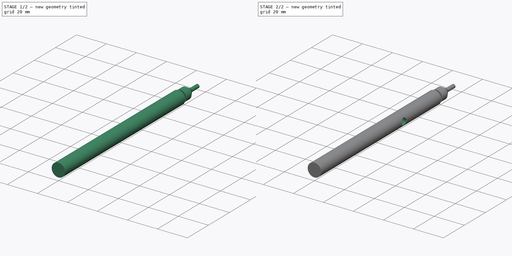
[diagram: build sequence overview — one tinted view per stage of 2, left to right]
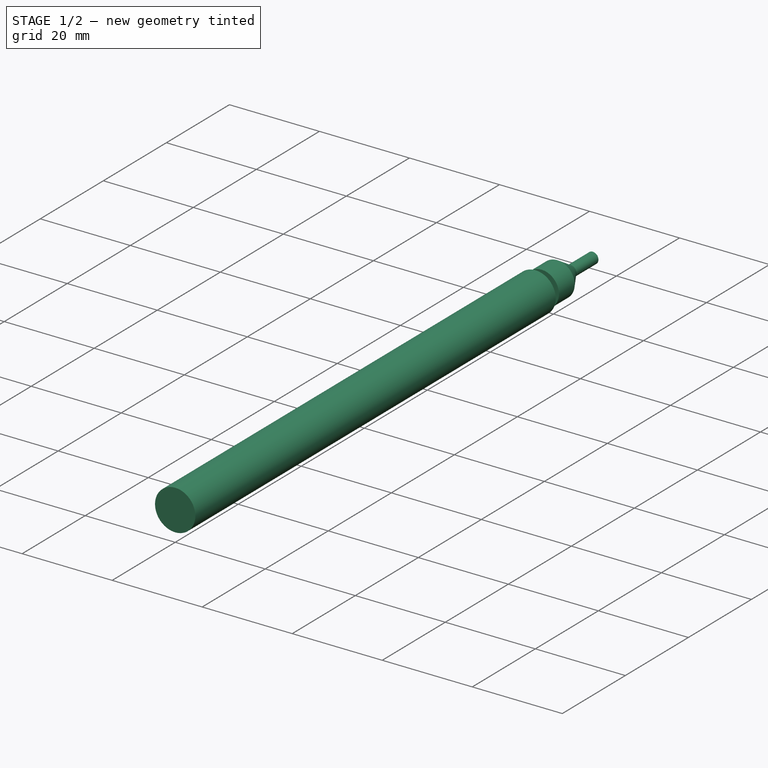
[diagram: stage 1 of 2 — iso view after this stage's code; geometry added in this stage tinted green]
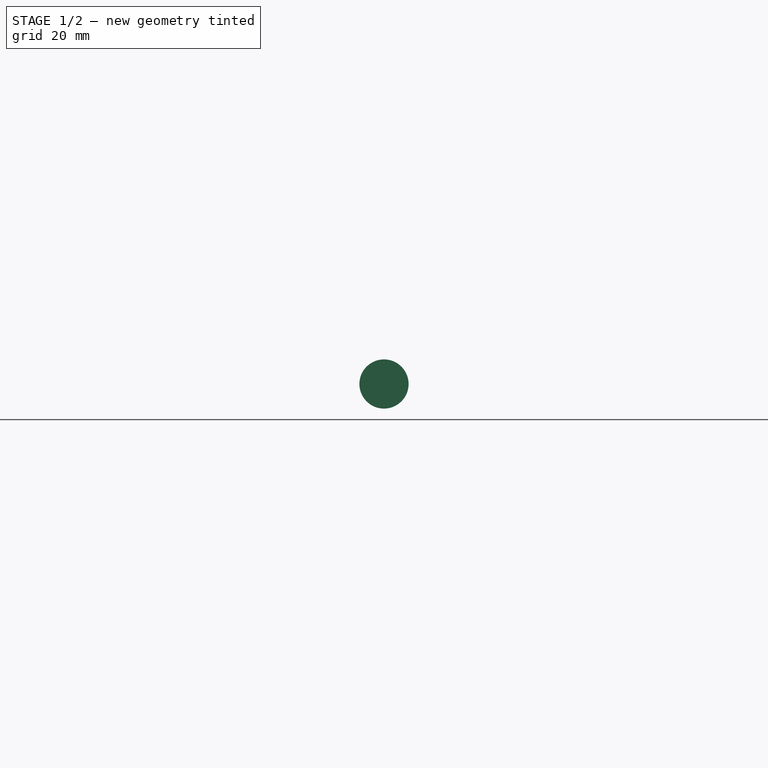
[diagram: stage 1 of 2 — front view after this stage's code; geometry added in this stage tinted green]
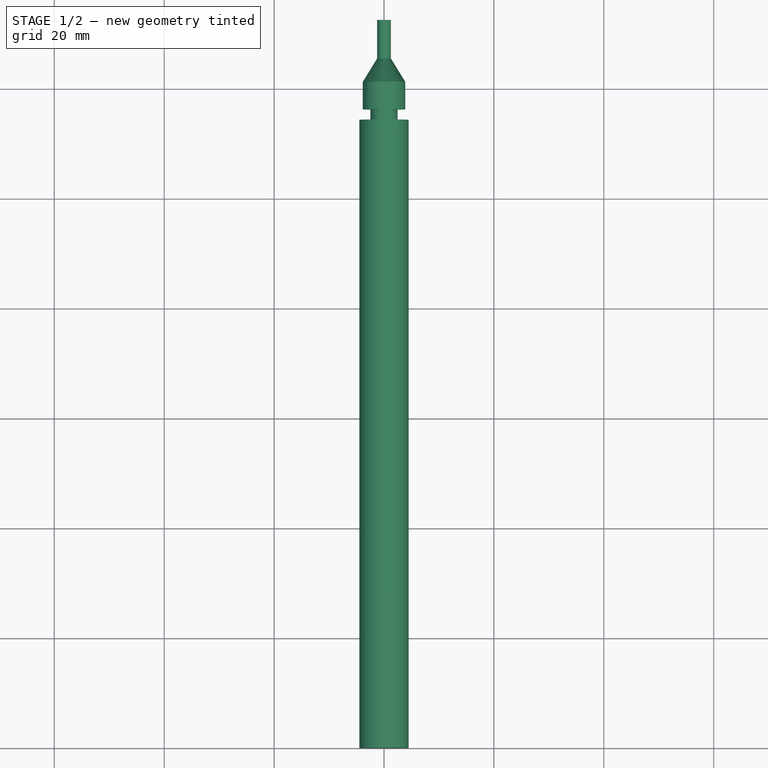
[diagram: stage 1 of 2 — top view after this stage's code; geometry added in this stage tinted green]
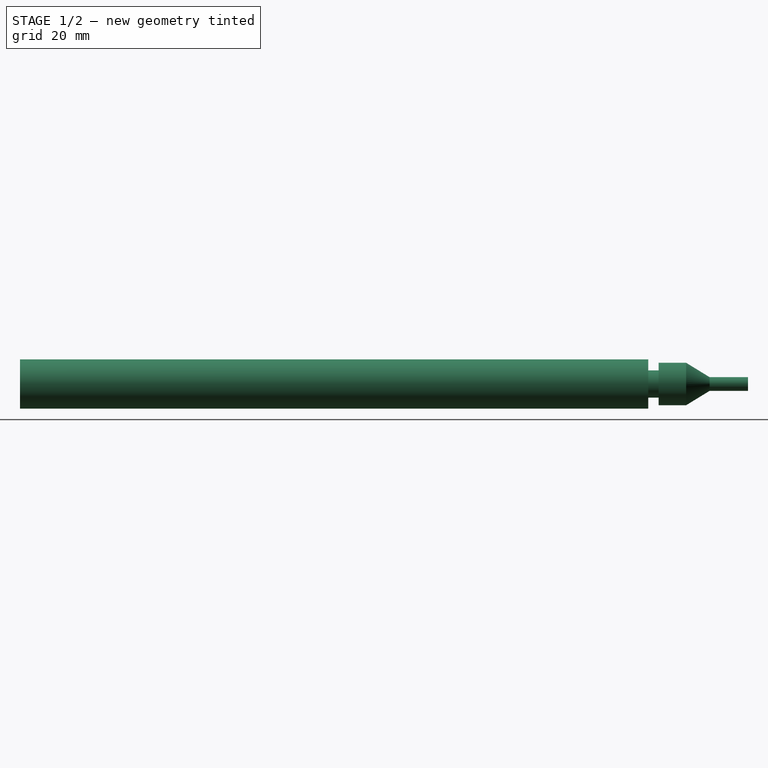
[diagram: stage 1 of 2 — right view after this stage's code; geometry added in this stage tinted green]
FCSTD DOCUMENT  (FreeCAD 1.0R39319 (Git))
Label: pcp_bolt7_V2
License: All rights reserved
LicenseURL: https://en.wikipedia.org/wiki/All_rights_reserved
objects: Sketcher::SketchObject×2, PartDesign::Revolution×1, PartDesign::Plane×1, PartDesign::Pocket×1, PartDesign::Body×1
note: 12 computed .brp shape members not serialized (recipe doc carries the construction recipe); baked Part::Feature solids carry a one-line shape summary decoded from their .brp

FEATURE [Sketcher::SketchObject] Sketch
  ArcFitTolerance = 1e-06
  AttachmentSupport = -> [XY_Plane]
  FullyConstrained = false
  MakeInternals = false
  MapMode = 5
  sketch-geometry (10):
    g0: LineSegment StartX=0 StartY=0 StartZ=0 EndX=4.475 EndY=0 EndZ=0
    g1: LineSegment StartX=3.86176 StartY=121.236 StartZ=0 EndX=1.25 EndY=125.5 EndZ=0
    g2: LineSegment StartX=1.25 StartY=125.5 StartZ=0 EndX=1.25 EndY=132.5 EndZ=0
    g3: LineSegment StartX=1.25 StartY=132.5 StartZ=0 EndX=0 EndY=132.5 EndZ=0
    g4: LineSegment StartX=0 StartY=132.5 StartZ=0 EndX=0 EndY=0 EndZ=0
    g5: LineSegment StartX=4.475 StartY=0 StartZ=0 EndX=4.475 EndY=114.333 EndZ=0
    g6: LineSegment StartX=4.475 StartY=114.333 StartZ=0 EndX=2.475 EndY=114.333 EndZ=0
    g7: LineSegment StartX=2.475 StartY=114.333 StartZ=0 EndX=2.475 EndY=116.236 EndZ=0
    g8: LineSegment StartX=2.475 StartY=116.236 StartZ=0 EndX=3.86176 EndY=116.236 EndZ=0
    g9: LineSegment StartX=3.86176 StartY=116.236 StartZ=0 EndX=3.86176 EndY=121.236 EndZ=0
  constraints (28):
    c: Coincident(g-1,g0)
    c: PointOnObject(g0,g-1)
    c: Coincident(g1,g2)
    c: Vertical(g2)
    c: Coincident(g2,g3)
    c: PointOnObject(g3,g-2)
    c: Horizontal(g3)
    c: Coincident(g3,g4)
    c: Coincident(g4,g0)
    c: DistanceY(g0,g3) = 132.5
    c: DistanceY(g1,g2) = 7
    c: Distance(g1,g1) = 5
    c: DistanceX(g0,g0) = 4.475
    c: DistanceX(g3,g2) = 1.25
    c: Coincident(g0,g5)
    c: Vertical(g5)
    c: Coincident(g5,g6)
    c: Coincident(g6,g7)
    c: Vertical(g7)
    c: Coincident(g7,g8)
    c: Coincident(g8,g9)
    c: Coincident(g9,g1)
    c: Horizontal(g8)
    c: Horizontal(g6)
    c: Vertical(g9)
    c: Distance(g8,g5) = 2
    c: Distance(g6,g5) = 2
    c: Distance(g1,g8) = 5
FEATURE [PartDesign::Revolution] Revolution
  Angle = 360
  Angle2 = 60
  Axis = (0,1,0)
  Base = (0,0,0)
  Profile = -> Sketch
  ReferenceAxis = -> Sketch [V_Axis]
  Refine = true
  Reversed = true
  Suppressed = false
  Type = 0
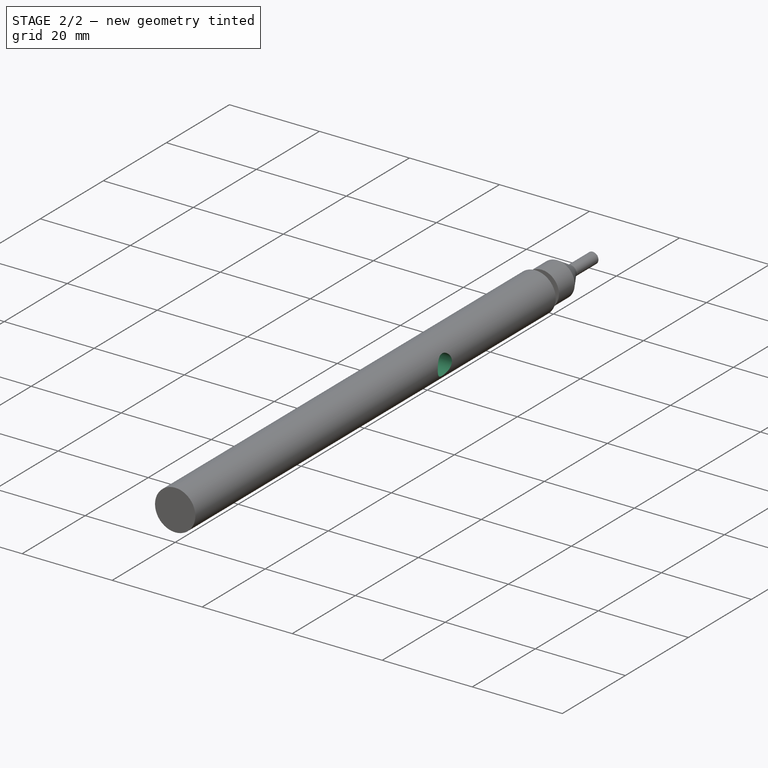
[diagram: stage 2 of 2 — iso view after this stage's code; geometry added in this stage tinted green]
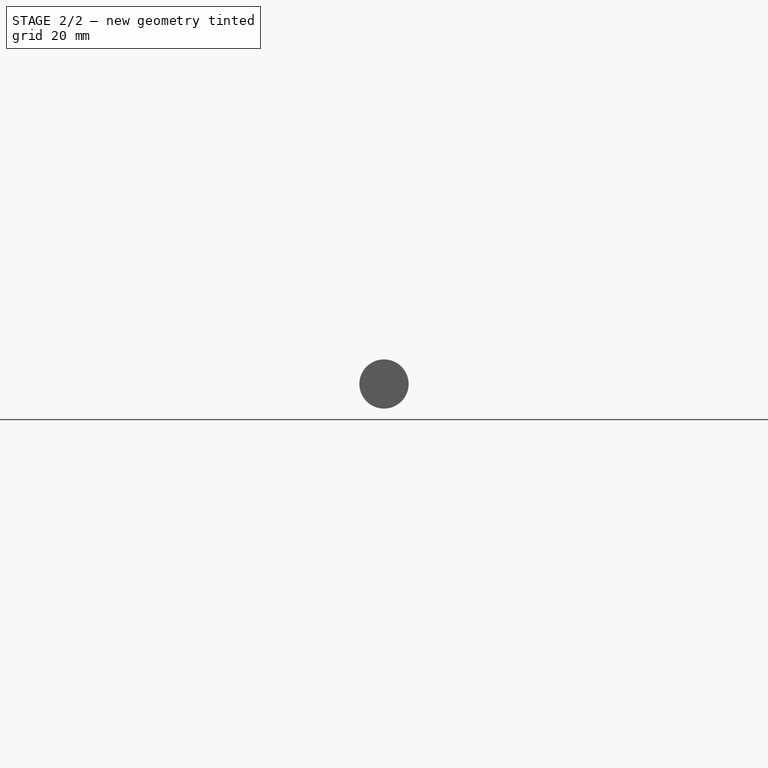
[diagram: stage 2 of 2 — front view after this stage's code; geometry added in this stage tinted green]
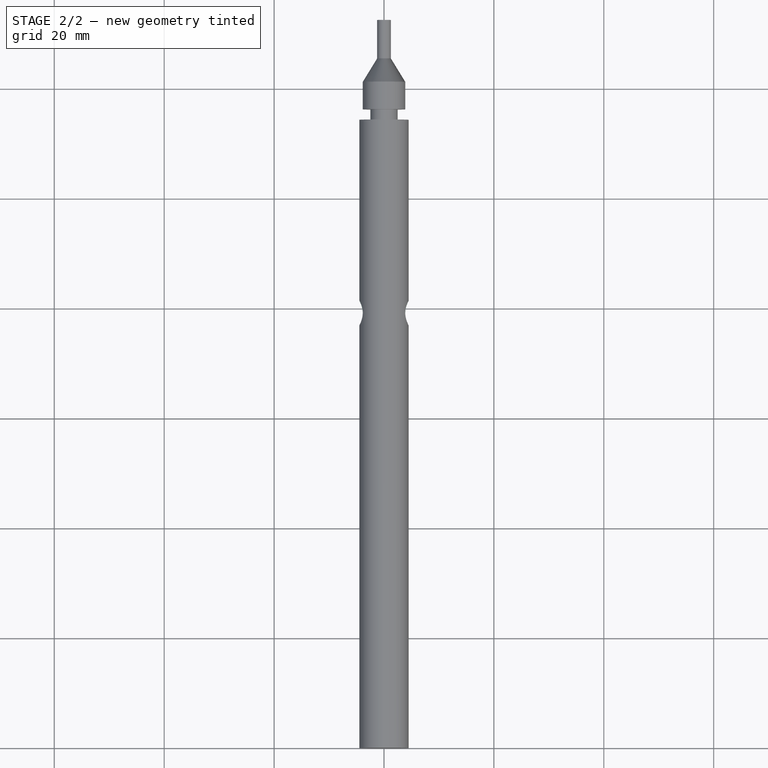
[diagram: stage 2 of 2 — top view after this stage's code; geometry added in this stage tinted green]
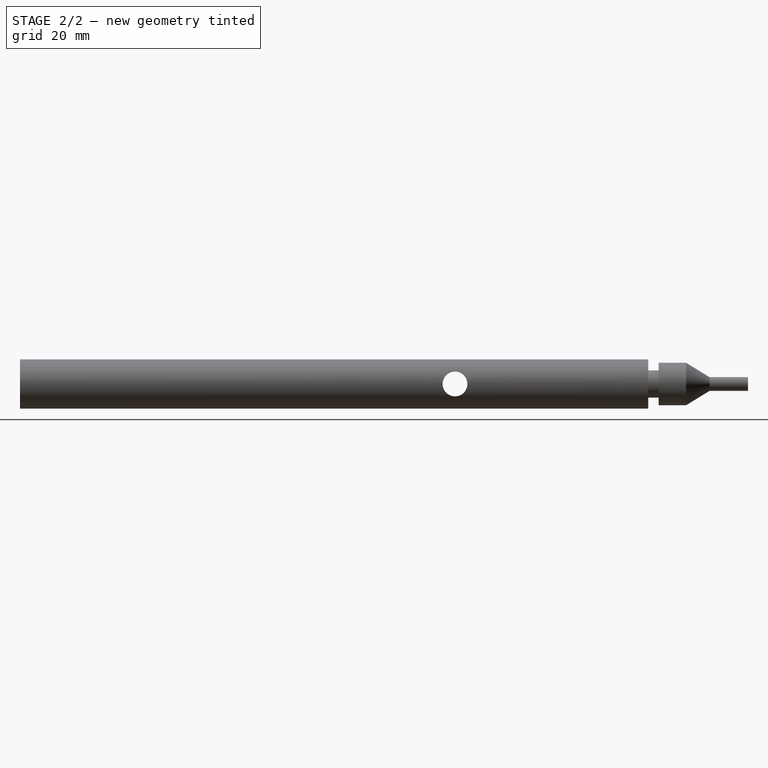
[diagram: stage 2 of 2 — right view after this stage's code; geometry added in this stage tinted green]
FEATURE [PartDesign::Plane] DatumPlane
  AttachmentOffset = pos=(4.5,0,0) rot=(0,1,0;1.5708rad)
  AttachmentSupport = -> [Revolution]
  Length = 94.9856
  MapMode = 45
  Placement = pos=(-4.5,57.1663,-1e-16) rot=(-0.57735,0.57735,0.57735;4.18879rad)
  ResizeMode = 0
  Width = 62.8192
FEATURE [Sketcher::SketchObject] Sketch001
  ArcFitTolerance = 1e-06
  AttachmentSupport = -> [DatumPlane]
  FullyConstrained = true
  MakeInternals = false
  MapMode = 5
  Placement = pos=(-4.5,57.1663,-1e-16) rot=(0.57735,-0.57735,-0.57735;2.0944rad)
  sketch-geometry (1):
    g0: Circle CenterX=-22 CenterY=0 CenterZ=0 NormalX=0 NormalY=0 NormalZ=1 AngleXU=0 Radius=2.25
  constraints (3):
    c: Diameter(g0) = 4.5
    c: DistanceY(g-1,g0) = 0
    c: DistanceX(g0,g-1) = 22
FEATURE [PartDesign::Pocket] Pocket
  BaseFeature = -> Revolution
  Direction = (1,0,0)
  Length = 7.5
  Length2 = 5
  Profile = -> Sketch001
  ReferenceAxis = -> Sketch001 [N_Axis]
  Refine = true
  Suppressed = false
  Type = 1
FEATURE [PartDesign::Body] Body
  AllowCompound = false
  Group = -> [Sketch,Revolution,DatumPlane,Sketch001,Pocket]
  Origin = -> Origin
  Tip = -> Pocket
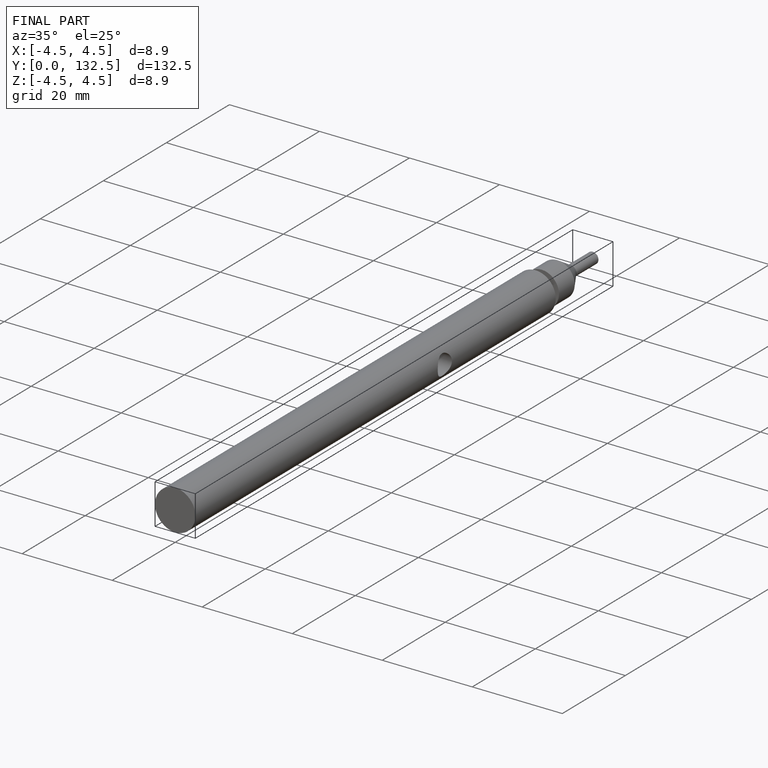
[diagram: finished part — iso view with bounding-box wireframe]
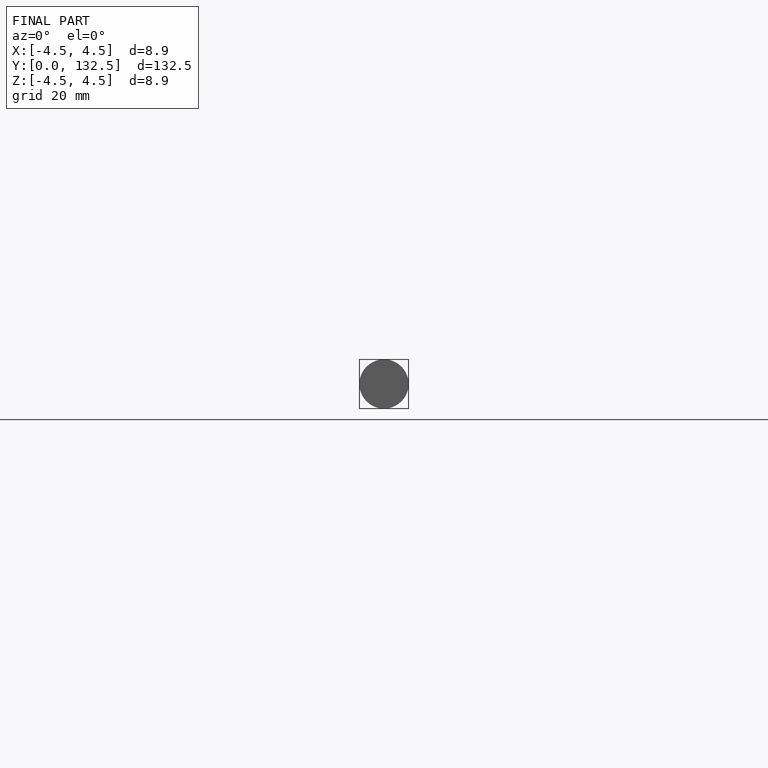
[diagram: finished part — front view with bounding-box wireframe]
